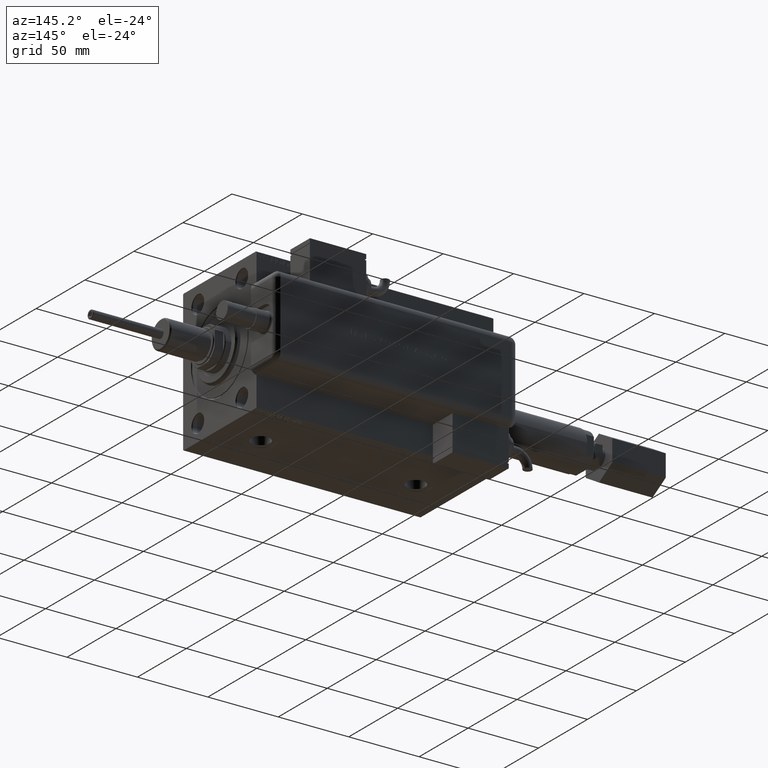
[diagram: clean part render]
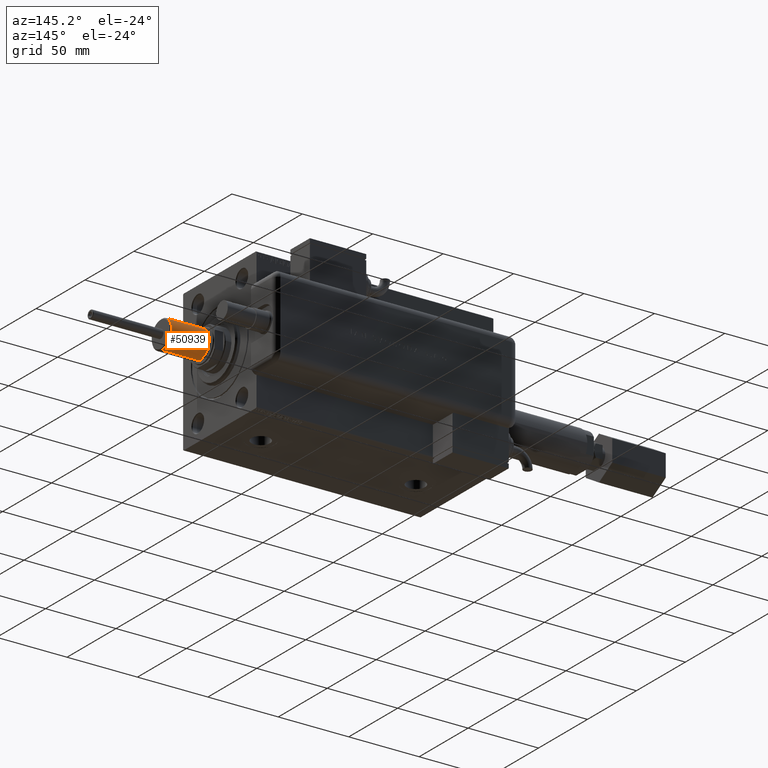
[diagram: same view with one face highlighted and labeled with its STEP entity id]
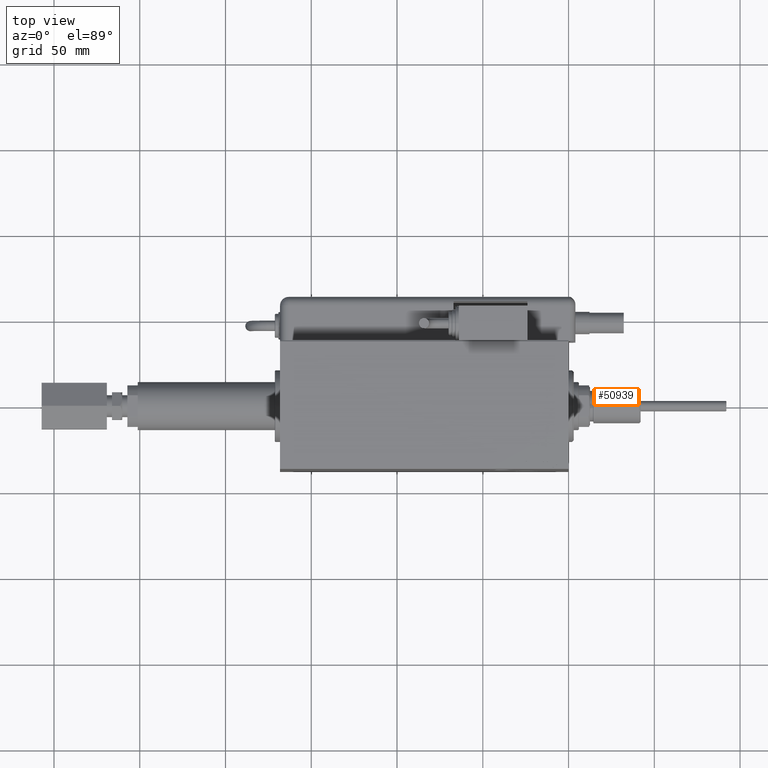
[diagram: same view with one face highlighted and labeled with its STEP entity id]
A machine part, auxiliary view. The second image highlights one B-rep face of the part: STEP entity #50939.
A second angle (top view) of the same face is appended — the face is thin or edge-on in the first view.
In plain terms, the highlighted cylindrical surface (edge-blend (fillet) strip) has radius 10 mm, axis along (1, -0, -0).
Its self-contained STEP definition (entity closure, byte-faithful):
#1591 = LINE ( 'NONE', #24548, #44221 ) ;
#3141 = DIRECTION ( 'NONE',  ( 1.000000000000000000, 0.000000000000000000, 0.000000000000000000 ) ) ;
#4068 = VERTEX_POINT ( 'NONE', #58999 ) ;
#8183 = ORIENTED_EDGE ( 'NONE', *, *, #36913, .F. ) ;
#9644 = LINE ( 'NONE', #43754, #40297 ) ;
#10177 = DIRECTION ( 'NONE',  ( -0.000000000000000000, -0.000000000000000000, -1.000000000000000000 ) ) ;
#10401 = AXIS2_PLACEMENT_3D ( 'NONE', #29731, #10177, #28808 ) ;
#10885 = DIRECTION ( 'NONE',  ( -0.000000000000000000, -0.000000000000000000, -1.000000000000000000 ) ) ;
#12158 = CARTESIAN_POINT ( 'NONE',  ( 10.00000000000000000, 1.224646799147353256E-15, 27.50000000000000000 ) ) ;
#15316 = VERTEX_POINT ( 'NONE', #61431 ) ;
#15512 = DIRECTION ( 'NONE',  ( -0.000000000000000000, -0.000000000000000000, -1.000000000000000000 ) ) ;
#15797 = EDGE_LOOP ( 'NONE', ( #8183, #30623, #47961, #32349 ) ) ;
#21009 = EDGE_CURVE ( 'NONE', #23693, #15316, #1591, .T. ) ;
#23693 = VERTEX_POINT ( 'NONE', #49777 ) ;
#23799 = EDGE_CURVE ( 'NONE', #4068, #15316, #41344, .T. ) ;
#24548 = CARTESIAN_POINT ( 'NONE',  ( -10.00000000000000000, 0.000000000000000000, 27.50000000000000000 ) ) ;
#28808 = DIRECTION ( 'NONE',  ( -1.000000000000000000, 0.000000000000000000, 0.000000000000000000 ) ) ;
#29731 = CARTESIAN_POINT ( 'NONE',  ( 0.000000000000000000, 0.000000000000000000, 27.50000000000000000 ) ) ;
#30623 = ORIENTED_EDGE ( 'NONE', *, *, #58092, .T. ) ;
#30770 = CIRCLE ( 'NONE', #60548, 10.00000000000000000 ) ;
#32349 = ORIENTED_EDGE ( 'NONE', *, *, #21009, .F. ) ;
#34125 = DIRECTION ( 'NONE',  ( 1.000000000000000000, 0.000000000000000000, 0.000000000000000000 ) ) ;
#36913 = EDGE_CURVE ( 'NONE', #37599, #23693, #30770, .T. ) ;
#37599 = VERTEX_POINT ( 'NONE', #12158 ) ;
#37812 = FACE_OUTER_BOUND ( 'NONE', #15797, .T. ) ;
#39378 = CARTESIAN_POINT ( 'NONE',  ( 0.000000000000000000, 0.000000000000000000, 0.7999999999999986011 ) ) ;
#40297 = VECTOR ( 'NONE', #15512, 1000.000000000000000 ) ;
#41344 = CIRCLE ( 'NONE', #48259, 10.00000000000000000 ) ;
#43754 = CARTESIAN_POINT ( 'NONE',  ( 10.00000000000000000, 1.224646799147353256E-15, 27.50000000000000000 ) ) ;
#44221 = VECTOR ( 'NONE', #10885, 1000.000000000000000 ) ;
#47961 = ORIENTED_EDGE ( 'NONE', *, *, #23799, .T. ) ;
#48259 = AXIS2_PLACEMENT_3D ( 'NONE', #39378, #57412, #34125 ) ;
#49777 = CARTESIAN_POINT ( 'NONE',  ( -10.00000000000000000, 0.000000000000000000, 27.50000000000000000 ) ) ;
#50644 = DIRECTION ( 'NONE',  ( 0.000000000000000000, 0.000000000000000000, 1.000000000000000000 ) ) ;
#50939 = ADVANCED_FACE ( 'NONE', ( #37812 ), #57675, .T. ) ;
#55917 = CARTESIAN_POINT ( 'NONE',  ( 0.000000000000000000, 0.000000000000000000, 27.50000000000000000 ) ) ;
#57412 = DIRECTION ( 'NONE',  ( -0.000000000000000000, -0.000000000000000000, 1.000000000000000000 ) ) ;
#57675 = CYLINDRICAL_SURFACE ( 'NONE', #10401, 10.00000000000000000 ) ;
#58092 = EDGE_CURVE ( 'NONE', #37599, #4068, #9644, .T. ) ;
#58999 = CARTESIAN_POINT ( 'NONE',  ( 10.00000000000000000, 1.224646799147353256E-15, 0.7999999999999986011 ) ) ;
#60548 = AXIS2_PLACEMENT_3D ( 'NONE', #55917, #50644, #3141 ) ;
#61431 = CARTESIAN_POINT ( 'NONE',  ( -10.00000000000000000, 0.000000000000000000, 0.7999999999999986011 ) ) ;